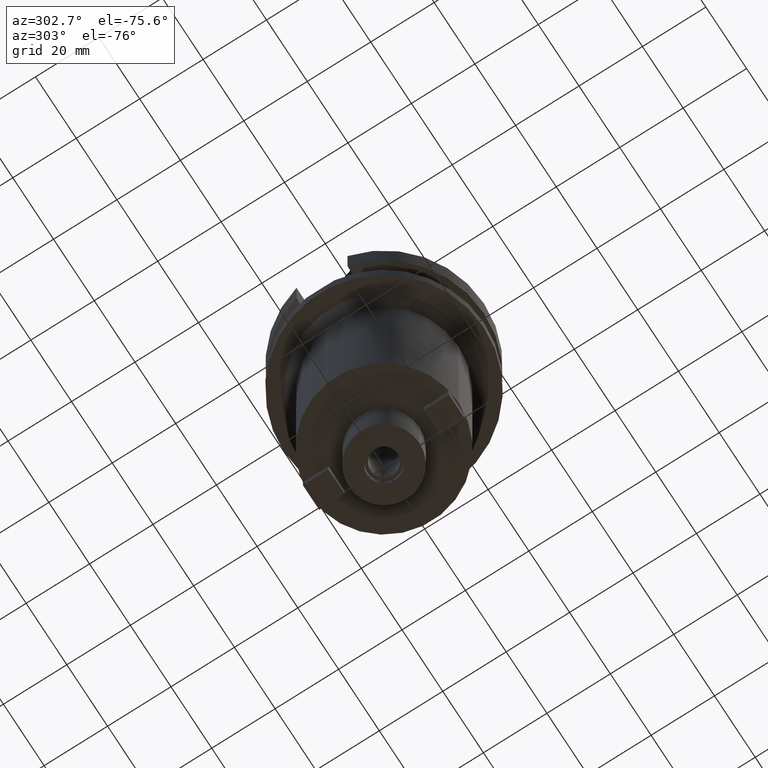
[diagram: clean part render]
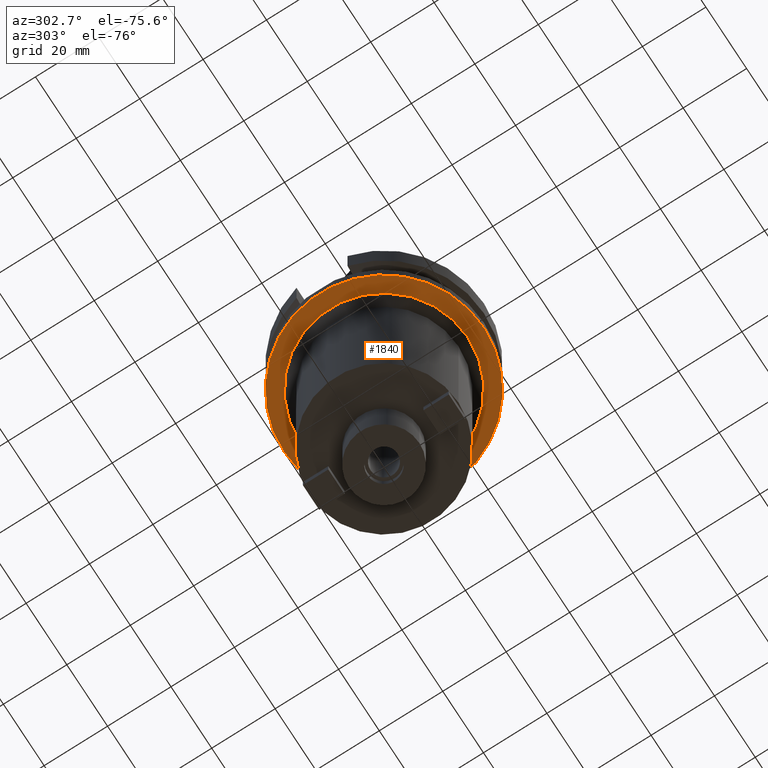
[diagram: same view with one face highlighted and labeled with its STEP entity id]
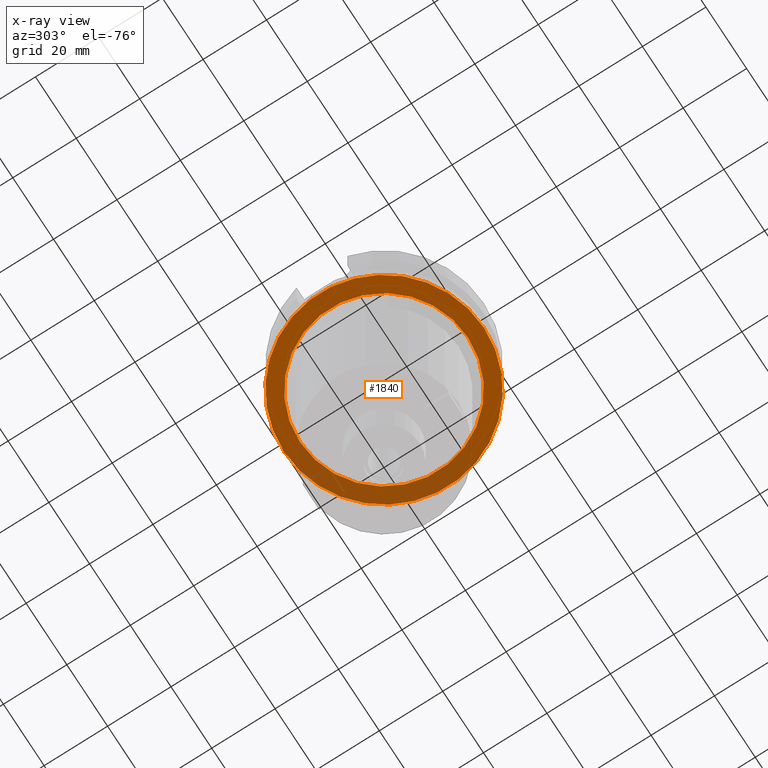
[diagram: x-ray of the same camera — body ghosted, the highlighted face saturated]
A machine part, auxiliary view. The second image highlights one B-rep face of the part: STEP entity #1840.
The next image is the same camera in x-ray: the body ghosted, the highlighted face saturated — about 30% of this face is hidden behind the body in this view.
In plain terms, the highlighted planar face has unit normal (0, 0, -1).
Its self-contained STEP definition (entity closure, byte-faithful):
#629=CARTESIAN_POINT('',(0.E0,2.131130359876E-14,-2.7E1));
#630=DIRECTION('',(0.E0,0.E0,1.E0));
#631=DIRECTION('',(0.E0,-1.E0,0.E0));
#632=AXIS2_PLACEMENT_3D('',#629,#630,#631);
#637=CARTESIAN_POINT('',(0.E0,2.131130359876E-14,-2.7E1));
#638=DIRECTION('',(0.E0,0.E0,1.E0));
#639=DIRECTION('',(0.E0,1.E0,0.E0));
#640=AXIS2_PLACEMENT_3D('',#637,#638,#639);
#645=CARTESIAN_POINT('',(0.E0,0.E0,-2.7E1));
#646=DIRECTION('',(0.E0,0.E0,-1.E0));
#647=DIRECTION('',(0.E0,-1.E0,0.E0));
#648=AXIS2_PLACEMENT_3D('',#645,#646,#647);
#653=CARTESIAN_POINT('',(0.E0,0.E0,-2.7E1));
#654=DIRECTION('',(0.E0,0.E0,-1.E0));
#655=DIRECTION('',(0.E0,1.E0,0.E0));
#656=AXIS2_PLACEMENT_3D('',#653,#654,#655);
#1293=CARTESIAN_POINT('',(0.E0,2.65E1,-2.7E1));
#1294=VERTEX_POINT('',#1293);
#1295=CARTESIAN_POINT('',(0.E0,-2.65E1,-2.7E1));
#1296=VERTEX_POINT('',#1295);
#1297=CARTESIAN_POINT('',(0.E0,-3.15E1,-2.7E1));
#1298=CARTESIAN_POINT('',(0.E0,3.15E1,-2.7E1));
#1299=VERTEX_POINT('',#1297);
#1300=VERTEX_POINT('',#1298);
#1825=CARTESIAN_POINT('',(0.E0,0.E0,-2.7E1));
#1826=DIRECTION('',(0.E0,0.E0,-1.E0));
#1827=DIRECTION('',(0.E0,-1.E0,0.E0));
#1828=AXIS2_PLACEMENT_3D('',#1825,#1826,#1827);
#1829=PLANE('',#1828);
#1830=ORIENTED_EDGE('',*,*,#1787,.T.);
#1831=ORIENTED_EDGE('',*,*,#1818,.T.);
#1832=EDGE_LOOP('',(#1830,#1831));
#1833=FACE_OUTER_BOUND('',#1832,.F.);
#1835=ORIENTED_EDGE('',*,*,#1834,.T.);
#1837=ORIENTED_EDGE('',*,*,#1836,.T.);
#1838=EDGE_LOOP('',(#1835,#1837));
#1839=FACE_BOUND('',#1838,.F.);
#633=CIRCLE('',#632,3.15E1);
#641=CIRCLE('',#640,3.15E1);
#649=CIRCLE('',#648,2.65E1);
#657=CIRCLE('',#656,2.65E1);
#1787=EDGE_CURVE('',#1299,#1300,#633,.T.);
#1818=EDGE_CURVE('',#1300,#1299,#641,.T.);
#1834=EDGE_CURVE('',#1296,#1294,#649,.T.);
#1836=EDGE_CURVE('',#1294,#1296,#657,.T.);
#1840=ADVANCED_FACE('',(#1833,#1839),#1829,.T.);